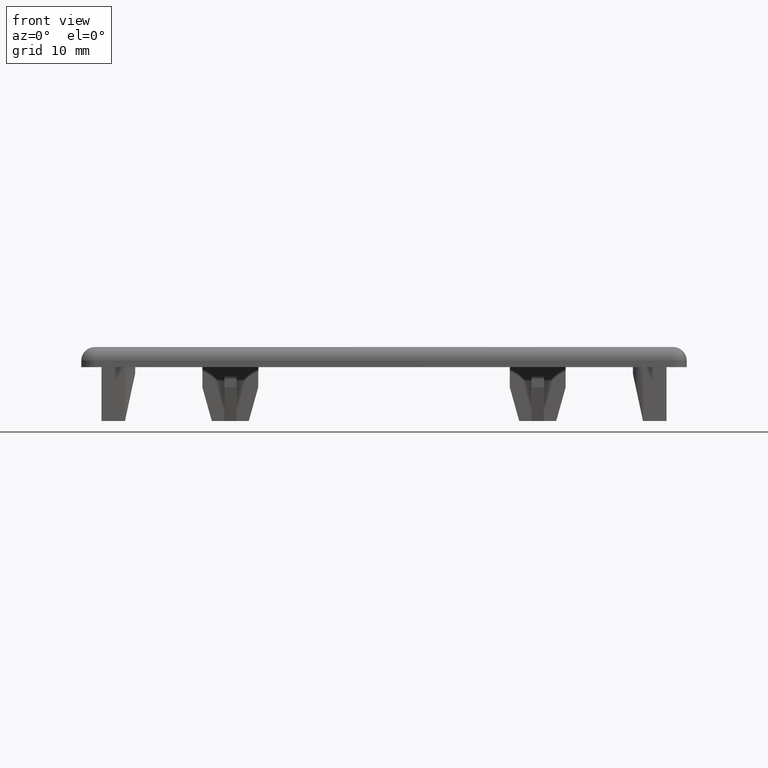
[diagram: clean part render]
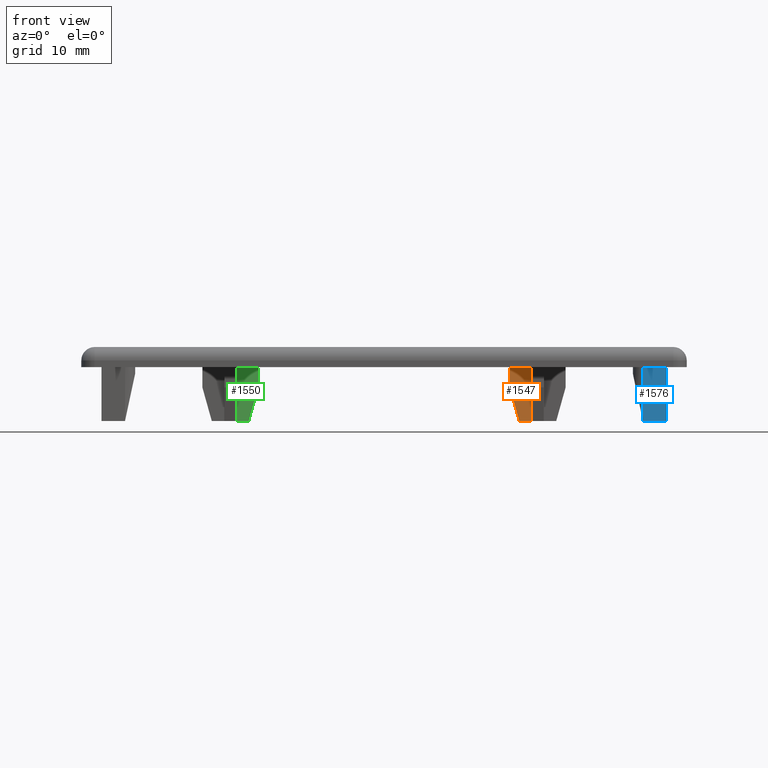
[diagram: same view with three faces highlighted in distinct colors, each labeled with its STEP entity id]
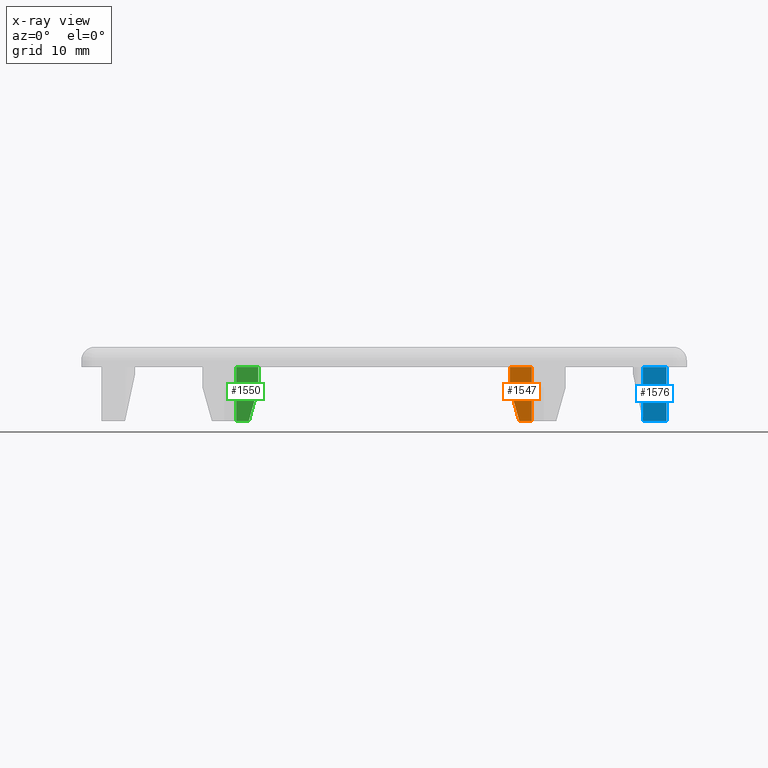
[diagram: x-ray of the same camera — body ghosted, the three highlighted faces saturated]
A machine part, front view with three faces highlighted in distinct colors.
The next image is the same camera in x-ray (body ghosted, the three faces saturated) — at least one of them is partly hidden behind the body in this view.
Their STEP definitions:

[orange] entity #1547 — the highlighted planar face has unit normal (0, -1, 0).
#113=FACE_OUTER_BOUND('',#201,.T.);
#201=EDGE_LOOP('',(#1156,#1157,#1158,#1159,#1160));
#351=LINE('',#2377,#531);
#376=LINE('',#2445,#556);
#377=LINE('',#2447,#557);
#378=LINE('',#2449,#558);
#379=LINE('',#2450,#559);
#531=VECTOR('',#1893,5.19230199429887);
#556=VECTOR('',#1954,1.85);
#557=VECTOR('',#1955,8.);
#558=VECTOR('',#1956,3.25);
#559=VECTOR('',#1957,3.);
#707=VERTEX_POINT('',#2375);
#708=VERTEX_POINT('',#2376);
#733=VERTEX_POINT('',#2444);
#734=VERTEX_POINT('',#2446);
#735=VERTEX_POINT('',#2448);
#867=EDGE_CURVE('',#707,#708,#351,.T.);
#900=EDGE_CURVE('',#733,#708,#376,.T.);
#901=EDGE_CURVE('',#734,#733,#377,.T.);
#902=EDGE_CURVE('',#735,#734,#378,.T.);
#903=EDGE_CURVE('',#735,#707,#379,.T.);
#1156=ORIENTED_EDGE('',*,*,#867,.T.);
#1157=ORIENTED_EDGE('',*,*,#900,.F.);
#1158=ORIENTED_EDGE('',*,*,#901,.F.);
#1159=ORIENTED_EDGE('',*,*,#902,.F.);
#1160=ORIENTED_EDGE('',*,*,#903,.T.);
#1478=PLANE('',#1657);
#1547=ADVANCED_FACE('',(#113),#1478,.T.);
#1657=AXIS2_PLACEMENT_3D('',#2443,#1952,#1953);
#1893=DIRECTION('',(0.269629925519971,0.,-0.962964019714182));
#1952=DIRECTION('center_axis',(0.,-1.,0.));
#1953=DIRECTION('ref_axis',(-1.,0.,0.));
#1954=DIRECTION('',(-1.,0.,0.));
#1955=DIRECTION('',(0.,0.,-1.));
#1956=DIRECTION('',(1.,0.,0.));
#1957=DIRECTION('',(0.,0.,-1.));
#2375=CARTESIAN_POINT('',(18.7,-0.9,-3.));
#2376=CARTESIAN_POINT('',(20.1,-0.9,-8.));
#2377=CARTESIAN_POINT('',(18.4286721068249,-0.9,-2.03097181008902));
#2443=CARTESIAN_POINT('Origin',(21.95,-0.9,0.));
#2444=CARTESIAN_POINT('',(21.95,-0.9,-8.));
#2445=CARTESIAN_POINT('',(18.7,-0.9,-8.));
#2446=CARTESIAN_POINT('',(21.95,-0.9,0.));
#2447=CARTESIAN_POINT('',(21.95,-0.9,0.));
#2448=CARTESIAN_POINT('',(18.7,-0.9,0.));
#2449=CARTESIAN_POINT('',(10.975,-0.9,0.));
#2450=CARTESIAN_POINT('',(18.7,-0.9,0.));

[blue] entity #1576 — the highlighted planar face has unit normal (0, -1, 0).
#142=FACE_OUTER_BOUND('',#230,.T.);
#230=EDGE_LOOP('',(#1306,#1307,#1308,#1309));
#373=LINE('',#2435,#553);
#374=LINE('',#2439,#554);
#424=LINE('',#2543,#604);
#425=LINE('',#2547,#605);
#553=VECTOR('',#1943,3.50000000000001);
#554=VECTOR('',#1948,8.);
#604=VECTOR('',#2066,8.);
#605=VECTOR('',#2073,3.50000000000001);
#702=VERTEX_POINT('',#2362);
#730=VERTEX_POINT('',#2433);
#731=VERTEX_POINT('',#2438);
#751=VERTEX_POINT('',#2541);
#895=EDGE_CURVE('',#730,#702,#373,.T.);
#897=EDGE_CURVE('',#731,#702,#374,.T.);
#953=EDGE_CURVE('',#751,#730,#424,.T.);
#955=EDGE_CURVE('',#731,#751,#425,.T.);
#1306=ORIENTED_EDGE('',*,*,#955,.F.);
#1307=ORIENTED_EDGE('',*,*,#897,.T.);
#1308=ORIENTED_EDGE('',*,*,#895,.F.);
#1309=ORIENTED_EDGE('',*,*,#953,.F.);
#1502=PLANE('',#1692);
#1576=ADVANCED_FACE('',(#142),#1502,.T.);
#1692=AXIS2_PLACEMENT_3D('',#2546,#2071,#2072);
#1943=DIRECTION('',(-1.,0.,0.));
#1948=DIRECTION('',(0.,0.,-1.));
#2066=DIRECTION('',(0.,0.,-1.));
#2071=DIRECTION('center_axis',(0.,-1.,0.));
#2072=DIRECTION('ref_axis',(-1.,0.,0.));
#2073=DIRECTION('',(1.,0.,0.));
#2362=CARTESIAN_POINT('',(38.5,-27.,-8.));
#2433=CARTESIAN_POINT('',(42.,-27.,-8.));
#2435=CARTESIAN_POINT('',(38.5,-27.,-8.));
#2438=CARTESIAN_POINT('',(38.5,-27.,0.));
#2439=CARTESIAN_POINT('',(38.5,-27.,0.));
#2541=CARTESIAN_POINT('',(42.,-27.,0.));
#2543=CARTESIAN_POINT('',(42.,-27.,0.));
#2546=CARTESIAN_POINT('Origin',(42.,-27.,0.));
#2547=CARTESIAN_POINT('',(21.,-27.,0.));

[green] entity #1550 — the highlighted planar face has unit normal (0, -1, 0).
#116=FACE_OUTER_BOUND('',#204,.T.);
#204=EDGE_LOOP('',(#1178,#1179,#1180,#1181,#1182));
#315=LINE('',#2290,#495);
#359=LINE('',#2395,#539);
#386=LINE('',#2461,#566);
#387=LINE('',#2464,#567);
#388=LINE('',#2465,#568);
#495=VECTOR('',#1819,8.);
#539=VECTOR('',#1905,5.19230199429887);
#566=VECTOR('',#1968,1.85);
#567=VECTOR('',#1971,3.);
#568=VECTOR('',#1972,3.25);
#675=VERTEX_POINT('',#2287);
#676=VERTEX_POINT('',#2289);
#715=VERTEX_POINT('',#2393);
#716=VERTEX_POINT('',#2394);
#738=VERTEX_POINT('',#2463);
#825=EDGE_CURVE('',#676,#675,#315,.T.);
#875=EDGE_CURVE('',#715,#716,#359,.T.);
#910=EDGE_CURVE('',#715,#675,#386,.T.);
#911=EDGE_CURVE('',#738,#716,#387,.T.);
#912=EDGE_CURVE('',#676,#738,#388,.T.);
#1178=ORIENTED_EDGE('',*,*,#875,.T.);
#1179=ORIENTED_EDGE('',*,*,#911,.F.);
#1180=ORIENTED_EDGE('',*,*,#912,.F.);
#1181=ORIENTED_EDGE('',*,*,#825,.T.);
#1182=ORIENTED_EDGE('',*,*,#910,.F.);
#1481=PLANE('',#1660);
#1550=ADVANCED_FACE('',(#116),#1481,.T.);
#1660=AXIS2_PLACEMENT_3D('',#2462,#1969,#1970);
#1819=DIRECTION('',(0.,0.,-1.));
#1905=DIRECTION('',(0.269629925519971,0.,0.962964019714182));
#1968=DIRECTION('',(-1.,0.,0.));
#1969=DIRECTION('center_axis',(0.,-1.,0.));
#1970=DIRECTION('ref_axis',(-1.,0.,0.));
#1971=DIRECTION('',(0.,0.,-1.));
#1972=DIRECTION('',(1.,0.,0.));
#2287=CARTESIAN_POINT('',(-21.95,-0.9,-8.));
#2289=CARTESIAN_POINT('',(-21.95,-0.9,0.));
#2290=CARTESIAN_POINT('',(-21.95,-0.9,0.));
#2393=CARTESIAN_POINT('',(-20.1,-0.9,-8.));
#2394=CARTESIAN_POINT('',(-18.7,-0.9,-3.));
#2395=CARTESIAN_POINT('',(-19.0105341246291,-0.9,-4.10905044510386));
#2461=CARTESIAN_POINT('',(-18.7,-0.9,-8.));
#2462=CARTESIAN_POINT('Origin',(-18.7,-0.9,0.));
#2463=CARTESIAN_POINT('',(-18.7,-0.9,0.));
#2464=CARTESIAN_POINT('',(-18.7,-0.9,0.));
#2465=CARTESIAN_POINT('',(-9.34999999999999,-0.9,0.));